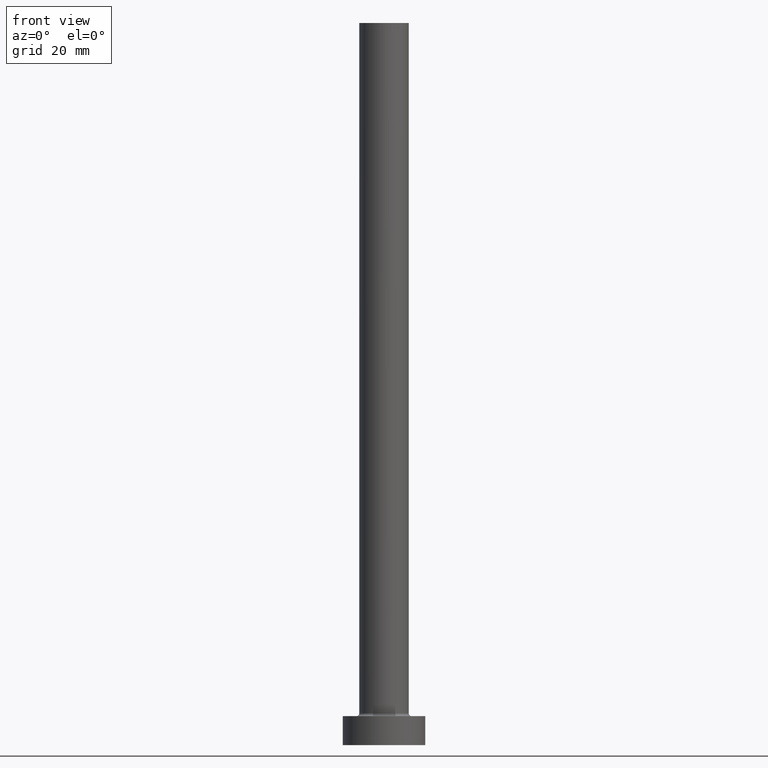
[diagram: clean part render]
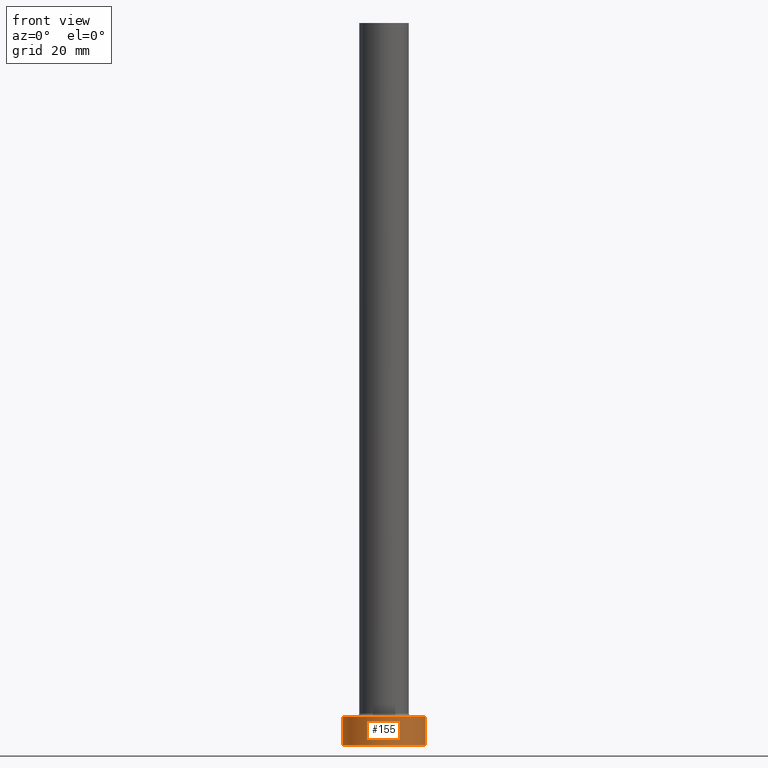
[diagram: same view with one face highlighted and labeled with its STEP entity id]
A machine part, front view. The second image highlights one B-rep face of the part: STEP entity #155.
In plain terms, the highlighted cylindrical surface (partial cylindrical patch) has radius 10 mm, axis along (-0, -0, -1).
Its self-contained STEP definition (entity closure, byte-faithful):
#2 = CARTESIAN_POINT ( 'NONE',  ( 0.000000000000000000, 0.000000000000000000, 0.000000000000000000 ) ) ;
#9 = DIRECTION ( 'NONE',  ( 0.000000000000000000, 0.000000000000000000, 1.000000000000000000 ) ) ;
#13 = CARTESIAN_POINT ( 'NONE',  ( -10.00000000000000000, 0.000000000000000000, 7.000000000000000000 ) ) ;
#14 = EDGE_CURVE ( 'NONE', #181, #79, #228, .T. ) ;
#19 = DIRECTION ( 'NONE',  ( -0.000000000000000000, -0.000000000000000000, -1.000000000000000000 ) ) ;
#20 = VECTOR ( 'NONE', #86, 1000.000000000000000 ) ;
#25 = AXIS2_PLACEMENT_3D ( 'NONE', #2, #9, #145 ) ;
#43 = ORIENTED_EDGE ( 'NONE', *, *, #105, .T. ) ;
#49 = CYLINDRICAL_SURFACE ( 'NONE', #104, 10.00000000000000000 ) ;
#79 = VERTEX_POINT ( 'NONE', #376 ) ;
#86 = DIRECTION ( 'NONE',  ( -0.000000000000000000, -0.000000000000000000, -1.000000000000000000 ) ) ;
#90 = EDGE_CURVE ( 'NONE', #458, #179, #334, .T. ) ;
#99 = ORIENTED_EDGE ( 'NONE', *, *, #184, .F. ) ;
#101 = ORIENTED_EDGE ( 'NONE', *, *, #90, .F. ) ;
#104 = AXIS2_PLACEMENT_3D ( 'NONE', #333, #19, #157 ) ;
#105 = EDGE_CURVE ( 'NONE', #458, #181, #405, .T. ) ;
#145 = DIRECTION ( 'NONE',  ( 1.000000000000000000, 0.000000000000000000, 0.000000000000000000 ) ) ;
#155 = ADVANCED_FACE ( 'NONE', ( #193 ), #49, .T. ) ;
#157 = DIRECTION ( 'NONE',  ( -1.000000000000000000, 0.000000000000000000, 0.000000000000000000 ) ) ;
#161 = CARTESIAN_POINT ( 'NONE',  ( 10.00000000000000000, 1.224646799147353256E-15, 7.000000000000000000 ) ) ;
#179 = VERTEX_POINT ( 'NONE', #161 ) ;
#181 = VERTEX_POINT ( 'NONE', #303 ) ;
#184 = EDGE_CURVE ( 'NONE', #179, #79, #271, .T. ) ;
#193 = FACE_OUTER_BOUND ( 'NONE', #347, .T. ) ;
#197 = DIRECTION ( 'NONE',  ( -0.000000000000000000, -0.000000000000000000, -1.000000000000000000 ) ) ;
#219 = ORIENTED_EDGE ( 'NONE', *, *, #14, .T. ) ;
#228 = CIRCLE ( 'NONE', #25, 10.00000000000000000 ) ;
#240 = CARTESIAN_POINT ( 'NONE',  ( -10.00000000000000000, 0.000000000000000000, 7.000000000000000000 ) ) ;
#257 = VECTOR ( 'NONE', #197, 1000.000000000000000 ) ;
#271 = LINE ( 'NONE', #409, #20 ) ;
#273 = DIRECTION ( 'NONE',  ( 0.000000000000000000, 0.000000000000000000, 1.000000000000000000 ) ) ;
#303 = CARTESIAN_POINT ( 'NONE',  ( -10.00000000000000000, 0.000000000000000000, 0.000000000000000000 ) ) ;
#333 = CARTESIAN_POINT ( 'NONE',  ( 0.000000000000000000, 0.000000000000000000, 7.000000000000000000 ) ) ;
#334 = CIRCLE ( 'NONE', #394, 10.00000000000000000 ) ;
#347 = EDGE_LOOP ( 'NONE', ( #99, #101, #43, #219 ) ) ;
#376 = CARTESIAN_POINT ( 'NONE',  ( 10.00000000000000000, 1.224646799147353256E-15, 0.000000000000000000 ) ) ;
#394 = AXIS2_PLACEMENT_3D ( 'NONE', #450, #273, #447 ) ;
#405 = LINE ( 'NONE', #240, #257 ) ;
#409 = CARTESIAN_POINT ( 'NONE',  ( 10.00000000000000000, 1.224646799147353256E-15, 7.000000000000000000 ) ) ;
#447 = DIRECTION ( 'NONE',  ( 1.000000000000000000, 0.000000000000000000, 0.000000000000000000 ) ) ;
#450 = CARTESIAN_POINT ( 'NONE',  ( 0.000000000000000000, 0.000000000000000000, 7.000000000000000000 ) ) ;
#458 = VERTEX_POINT ( 'NONE', #13 ) ;